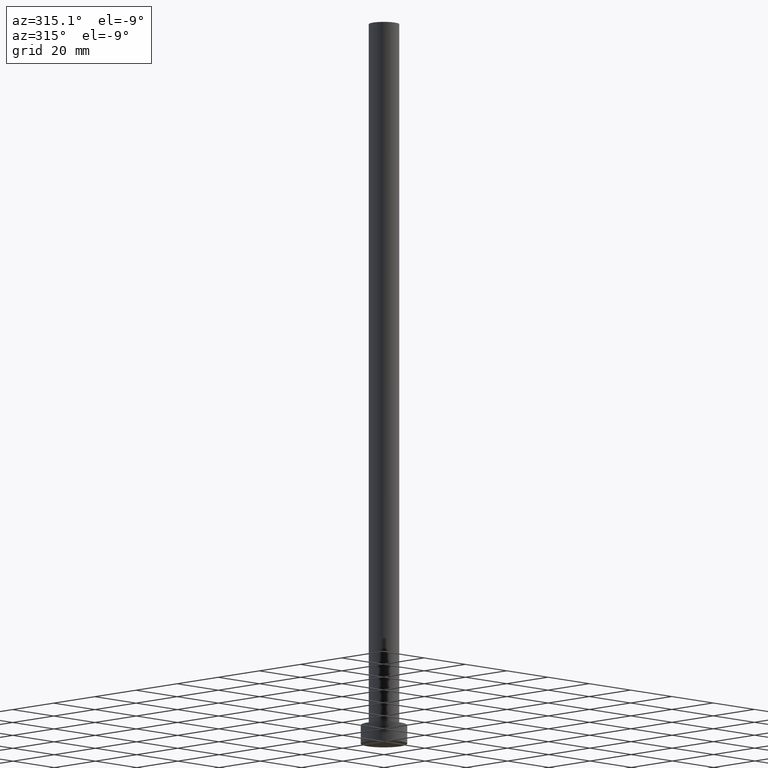
[diagram: clean part render]
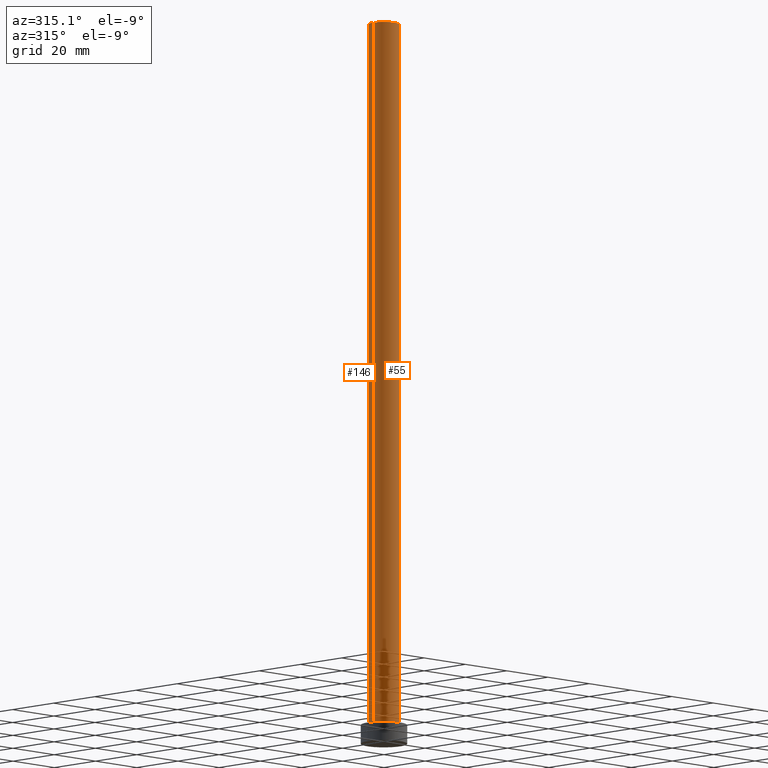
[diagram: same view with one multi-face feature highlighted, each face labeled with its STEP entity id]
A machine part, auxiliary view. The highlighted faces form ONE feature: a constant-radius fillet chain: 2 tangent blend faces with common blend radius 5.25 mm. The faces share edges in the B-rep.
Their STEP definitions:
[1] entity #146 (Cylinder):
#12 = CARTESIAN_POINT ( 'NONE',  ( 5.250000000000000888, 6.429395695523605139E-16, 250.0000000000000000 ) ) ;
#20 = EDGE_CURVE ( 'NONE', #105, #252, #159, .T. ) ;
#32 = DIRECTION ( 'NONE',  ( 1.000000000000000000, 0.000000000000000000, 0.000000000000000000 ) ) ;
#35 = ORIENTED_EDGE ( 'NONE', *, *, #20, .F. ) ;
#39 = CIRCLE ( 'NONE', #186, 5.250000000000000888 ) ;
#42 = FACE_OUTER_BOUND ( 'NONE', #149, .T. ) ;
#46 = CARTESIAN_POINT ( 'NONE',  ( 5.250000000000000888, 6.429395695523605139E-16, 6.500000000000000000 ) ) ;
#51 = CYLINDRICAL_SURFACE ( 'NONE', #206, 5.250000000000000888 ) ;
#53 = DIRECTION ( 'NONE',  ( 1.000000000000000000, 0.000000000000000000, 0.000000000000000000 ) ) ;
#58 = CARTESIAN_POINT ( 'NONE',  ( 5.250000000000000888, 6.429395695523605139E-16, 250.0000000000000000 ) ) ;
#85 = DIRECTION ( 'NONE',  ( 0.000000000000000000, 0.000000000000000000, 1.000000000000000000 ) ) ;
#88 = VERTEX_POINT ( 'NONE', #46 ) ;
#100 = ORIENTED_EDGE ( 'NONE', *, *, #136, .T. ) ;
#105 = VERTEX_POINT ( 'NONE', #221 ) ;
#107 = CARTESIAN_POINT ( 'NONE',  ( -5.250000000000000888, 0.000000000000000000, 250.0000000000000000 ) ) ;
#109 = CIRCLE ( 'NONE', #203, 5.250000000000000888 ) ;
#110 = DIRECTION ( 'NONE',  ( -0.000000000000000000, -0.000000000000000000, -1.000000000000000000 ) ) ;
#121 = DIRECTION ( 'NONE',  ( -0.000000000000000000, -0.000000000000000000, -1.000000000000000000 ) ) ;
#129 = CARTESIAN_POINT ( 'NONE',  ( 0.000000000000000000, 0.000000000000000000, 250.0000000000000000 ) ) ;
#134 = VECTOR ( 'NONE', #135, 1000.000000000000000 ) ;
#135 = DIRECTION ( 'NONE',  ( -0.000000000000000000, -0.000000000000000000, -1.000000000000000000 ) ) ;
#136 = EDGE_CURVE ( 'NONE', #208, #88, #237, .T. ) ;
#138 = ORIENTED_EDGE ( 'NONE', *, *, #232, .F. ) ;
#146 = ADVANCED_FACE ( 'NONE', ( #42 ), #51, .T. ) ;
#149 = EDGE_LOOP ( 'NONE', ( #138, #100, #191, #35 ) ) ;
#159 = LINE ( 'NONE', #107, #233 ) ;
#163 = CARTESIAN_POINT ( 'NONE',  ( 0.000000000000000000, 0.000000000000000000, 6.500000000000000000 ) ) ;
#170 = CARTESIAN_POINT ( 'NONE',  ( -5.250000000000000888, 0.000000000000000000, 6.500000000000000000 ) ) ;
#171 = EDGE_CURVE ( 'NONE', #88, #252, #109, .T. ) ;
#185 = DIRECTION ( 'NONE',  ( 0.000000000000000000, 0.000000000000000000, 1.000000000000000000 ) ) ;
#186 = AXIS2_PLACEMENT_3D ( 'NONE', #129, #85, #53 ) ;
#191 = ORIENTED_EDGE ( 'NONE', *, *, #171, .T. ) ;
#203 = AXIS2_PLACEMENT_3D ( 'NONE', #163, #185, #32 ) ;
#206 = AXIS2_PLACEMENT_3D ( 'NONE', #228, #110, #226 ) ;
#208 = VERTEX_POINT ( 'NONE', #12 ) ;
#221 = CARTESIAN_POINT ( 'NONE',  ( -5.250000000000000888, 0.000000000000000000, 250.0000000000000000 ) ) ;
#226 = DIRECTION ( 'NONE',  ( -1.000000000000000000, 0.000000000000000000, 0.000000000000000000 ) ) ;
#228 = CARTESIAN_POINT ( 'NONE',  ( 0.000000000000000000, 0.000000000000000000, 250.0000000000000000 ) ) ;
#232 = EDGE_CURVE ( 'NONE', #208, #105, #39, .T. ) ;
#233 = VECTOR ( 'NONE', #121, 1000.000000000000000 ) ;
#237 = LINE ( 'NONE', #58, #134 ) ;
#252 = VERTEX_POINT ( 'NONE', #170 ) ;
[2] entity #55 (Cylinder):
#10 = DIRECTION ( 'NONE',  ( -0.000000000000000000, -0.000000000000000000, -1.000000000000000000 ) ) ;
#11 = CARTESIAN_POINT ( 'NONE',  ( 0.000000000000000000, 0.000000000000000000, 250.0000000000000000 ) ) ;
#12 = CARTESIAN_POINT ( 'NONE',  ( 5.250000000000000888, 6.429395695523605139E-16, 250.0000000000000000 ) ) ;
#15 = ORIENTED_EDGE ( 'NONE', *, *, #136, .F. ) ;
#20 = EDGE_CURVE ( 'NONE', #105, #252, #159, .T. ) ;
#46 = CARTESIAN_POINT ( 'NONE',  ( 5.250000000000000888, 6.429395695523605139E-16, 6.500000000000000000 ) ) ;
#52 = ORIENTED_EDGE ( 'NONE', *, *, #94, .F. ) ;
#55 = ADVANCED_FACE ( 'NONE', ( #182 ), #175, .T. ) ;
#58 = CARTESIAN_POINT ( 'NONE',  ( 5.250000000000000888, 6.429395695523605139E-16, 250.0000000000000000 ) ) ;
#61 = DIRECTION ( 'NONE',  ( 0.000000000000000000, 0.000000000000000000, 1.000000000000000000 ) ) ;
#70 = AXIS2_PLACEMENT_3D ( 'NONE', #11, #10, #246 ) ;
#88 = VERTEX_POINT ( 'NONE', #46 ) ;
#94 = EDGE_CURVE ( 'NONE', #105, #208, #231, .T. ) ;
#95 = ORIENTED_EDGE ( 'NONE', *, *, #20, .T. ) ;
#102 = CARTESIAN_POINT ( 'NONE',  ( 0.000000000000000000, 0.000000000000000000, 250.0000000000000000 ) ) ;
#105 = VERTEX_POINT ( 'NONE', #221 ) ;
#107 = CARTESIAN_POINT ( 'NONE',  ( -5.250000000000000888, 0.000000000000000000, 250.0000000000000000 ) ) ;
#112 = CIRCLE ( 'NONE', #213, 5.250000000000000888 ) ;
#118 = AXIS2_PLACEMENT_3D ( 'NONE', #102, #61, #177 ) ;
#121 = DIRECTION ( 'NONE',  ( -0.000000000000000000, -0.000000000000000000, -1.000000000000000000 ) ) ;
#124 = EDGE_LOOP ( 'NONE', ( #15, #52, #95, #179 ) ) ;
#134 = VECTOR ( 'NONE', #135, 1000.000000000000000 ) ;
#135 = DIRECTION ( 'NONE',  ( -0.000000000000000000, -0.000000000000000000, -1.000000000000000000 ) ) ;
#136 = EDGE_CURVE ( 'NONE', #208, #88, #237, .T. ) ;
#145 = DIRECTION ( 'NONE',  ( 0.000000000000000000, 0.000000000000000000, 1.000000000000000000 ) ) ;
#159 = LINE ( 'NONE', #107, #233 ) ;
#170 = CARTESIAN_POINT ( 'NONE',  ( -5.250000000000000888, 0.000000000000000000, 6.500000000000000000 ) ) ;
#175 = CYLINDRICAL_SURFACE ( 'NONE', #70, 5.250000000000000888 ) ;
#177 = DIRECTION ( 'NONE',  ( 1.000000000000000000, 0.000000000000000000, 0.000000000000000000 ) ) ;
#179 = ORIENTED_EDGE ( 'NONE', *, *, #229, .T. ) ;
#182 = FACE_OUTER_BOUND ( 'NONE', #124, .T. ) ;
#205 = DIRECTION ( 'NONE',  ( 1.000000000000000000, 0.000000000000000000, 0.000000000000000000 ) ) ;
#208 = VERTEX_POINT ( 'NONE', #12 ) ;
#213 = AXIS2_PLACEMENT_3D ( 'NONE', #248, #145, #205 ) ;
#221 = CARTESIAN_POINT ( 'NONE',  ( -5.250000000000000888, 0.000000000000000000, 250.0000000000000000 ) ) ;
#229 = EDGE_CURVE ( 'NONE', #252, #88, #112, .T. ) ;
#231 = CIRCLE ( 'NONE', #118, 5.250000000000000888 ) ;
#233 = VECTOR ( 'NONE', #121, 1000.000000000000000 ) ;
#237 = LINE ( 'NONE', #58, #134 ) ;
#246 = DIRECTION ( 'NONE',  ( -1.000000000000000000, 0.000000000000000000, 0.000000000000000000 ) ) ;
#248 = CARTESIAN_POINT ( 'NONE',  ( 0.000000000000000000, 0.000000000000000000, 6.500000000000000000 ) ) ;
#252 = VERTEX_POINT ( 'NONE', #170 ) ;